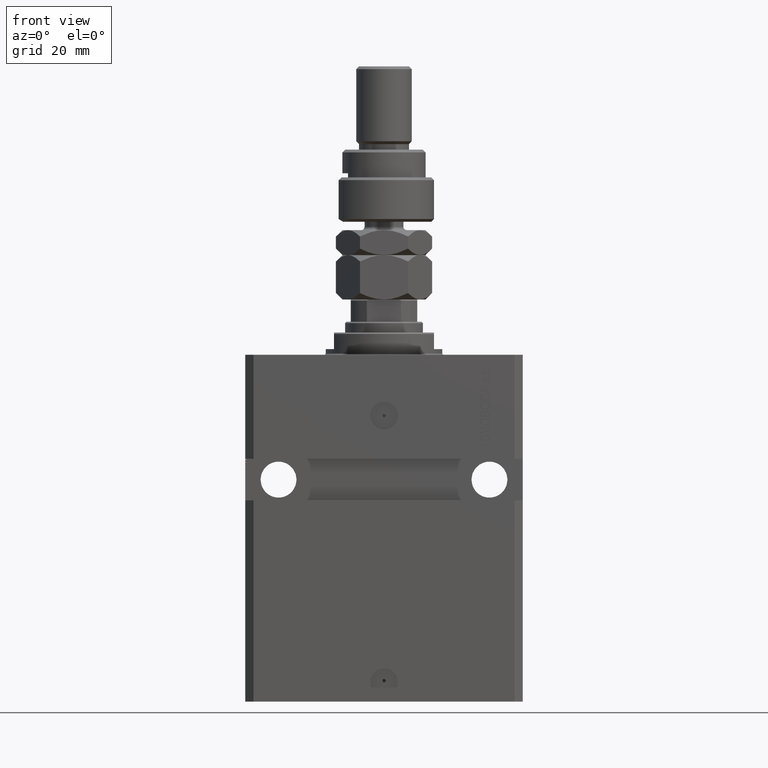
[diagram: clean part render]
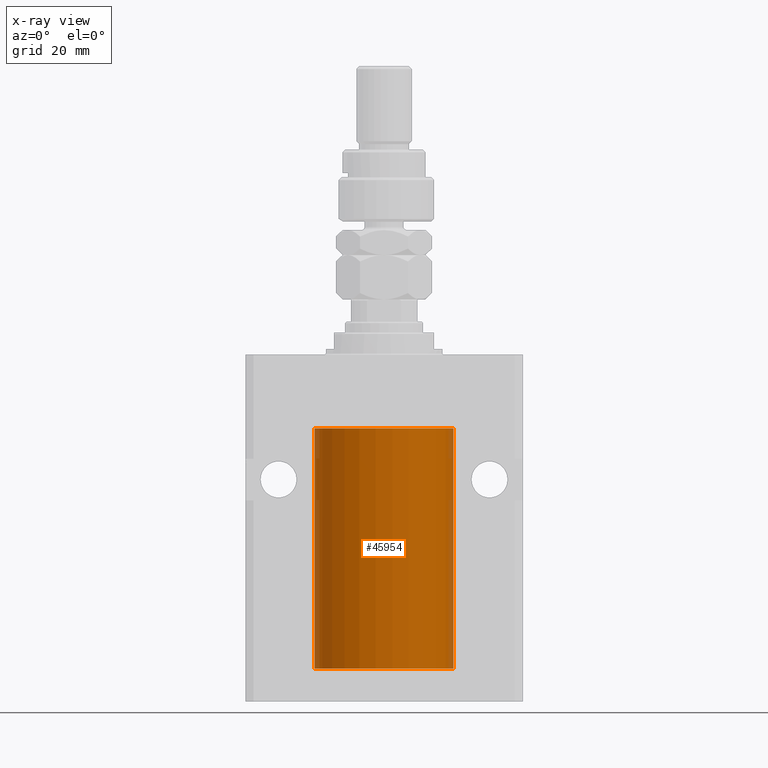
[diagram: x-ray — body ghosted, one internal face saturated and labeled with its STEP entity id]
A machine part, front view, then the same camera in x-ray: the body is ghosted and one INTERNAL B-rep face — a face not visible from any outside direction — is saturated and labeled: STEP entity #45954.
In plain terms, the highlighted cylindrical surface (partial cylindrical patch) has radius 25 mm, axis along (0, 0, 1).
Its self-contained STEP definition (entity closure, byte-faithful):
#1011 = EDGE_CURVE ( 'NONE', #47231, #46556, #41535, .T. ) ;
#1228 = DIRECTION ( 'NONE',  ( 0.000000000000000000, 0.000000000000000000, 1.000000000000000000 ) ) ;
#2929 = DIRECTION ( 'NONE',  ( -0.000000000000000000, -0.000000000000000000, 1.000000000000000000 ) ) ;
#3446 = LINE ( 'NONE', #29990, #8678 ) ;
#4051 = ORIENTED_EDGE ( 'NONE', *, *, #1011, .F. ) ;
#4135 = CARTESIAN_POINT ( 'NONE',  ( -25.00000000000000000, -2.540720905424995806E-14, -109.8750000000000000 ) ) ;
#6867 = EDGE_CURVE ( 'NONE', #38957, #34675, #27768, .T. ) ;
#7808 = CARTESIAN_POINT ( 'NONE',  ( 25.00000000000000000, 0.000000000000000000, -26.60000000000000142 ) ) ;
#8332 = AXIS2_PLACEMENT_3D ( 'NONE', #38445, #19274, #15455 ) ;
#8678 = VECTOR ( 'NONE', #2929, 1000.000000000000000 ) ;
#9184 = EDGE_CURVE ( 'NONE', #48681, #25495, #3446, .T. ) ;
#11297 = CIRCLE ( 'NONE', #24315, 25.00000000000000000 ) ;
#12301 = CARTESIAN_POINT ( 'NONE',  ( -25.00000000000000355, -0.1651503688830821270, -109.8750000000000142 ) ) ;
#13480 = DIRECTION ( 'NONE',  ( 1.000000000000000000, 0.000000000000000000, 0.000000000000000000 ) ) ;
#13776 = AXIS2_PLACEMENT_3D ( 'NONE', #18487, #29714, #14672 ) ;
#14069 = ORIENTED_EDGE ( 'NONE', *, *, #17215, .F. ) ;
#14169 = FACE_OUTER_BOUND ( 'NONE', #31977, .T. ) ;
#14672 = DIRECTION ( 'NONE',  ( 1.000000000000000000, 0.000000000000000000, 0.000000000000000000 ) ) ;
#15172 = EDGE_CURVE ( 'NONE', #34675, #48681, #19158, .T. ) ;
#15455 = DIRECTION ( 'NONE',  ( 1.000000000000000000, 0.000000000000000000, 0.000000000000000000 ) ) ;
#15653 = CARTESIAN_POINT ( 'NONE',  ( -25.00000000000008171, 3.517566575222595158E-13, -111.1250000000032827 ) ) ;
#15882 = CARTESIAN_POINT ( 'NONE',  ( -24.99999999999999645, -0.1631302912503610480, -111.1250000000001421 ) ) ;
#16125 = CARTESIAN_POINT ( 'NONE',  ( 25.00000000000000000, 0.000000000000000000, -113.0999999999999943 ) ) ;
#16322 = ORIENTED_EDGE ( 'NONE', *, *, #6867, .T. ) ;
#16384 = CARTESIAN_POINT ( 'NONE',  ( -24.99406145684571001, -0.5569515746258935085, -110.8270940848234858 ) ) ;
#17054 = CARTESIAN_POINT ( 'NONE',  ( -25.00000000000000000, 3.061616997868383043E-15, -113.0999999999999943 ) ) ;
#17215 = EDGE_CURVE ( 'NONE', #38957, #47231, #11297, .T. ) ;
#17791 = CARTESIAN_POINT ( 'NONE',  ( 25.00000000000000000, 0.000000000000000000, -113.0999999999999943 ) ) ;
#18487 = CARTESIAN_POINT ( 'NONE',  ( 0.000000000000000000, 0.000000000000000000, -113.0999999999999943 ) ) ;
#19158 = B_SPLINE_CURVE_WITH_KNOTS ( 'NONE', 3,
 ( #47778, #15882, #20456, #16384, #36044, #47285, #39119, #24013, #12301, #4135 ),
 .UNSPECIFIED., .F., .F.,
 ( 4, 2, 2, 2, 4 ),
 ( 0.001954111766881341111, 0.002442529193076332407, 0.002930946619271323703, 0.003419364045466314998, 0.003907781471661306294 ),
 .UNSPECIFIED. ) ;
#19274 = DIRECTION ( 'NONE',  ( 0.000000000000000000, 0.000000000000000000, 1.000000000000000000 ) ) ;
#20456 = CARTESIAN_POINT ( 'NONE',  ( -24.99813644420120795, -0.3263088753891773552, -111.0574119792819374 ) ) ;
#21472 = ORIENTED_EDGE ( 'NONE', *, *, #15172, .T. ) ;
#21620 = DIRECTION ( 'NONE',  ( -0.000000000000000000, -0.000000000000000000, 1.000000000000000000 ) ) ;
#23210 = CARTESIAN_POINT ( 'NONE',  ( -25.00000000000000000, 3.061616997868383043E-15, -113.0999999999999943 ) ) ;
#24013 = CARTESIAN_POINT ( 'NONE',  ( -24.99812796309119634, -0.3269516851027584048, -109.9429046887702128 ) ) ;
#24315 = AXIS2_PLACEMENT_3D ( 'NONE', #47964, #1228, #13480 ) ;
#24546 = CARTESIAN_POINT ( 'NONE',  ( -25.00000000000000000, 3.061616997868383043E-15, -26.60000000000000142 ) ) ;
#25495 = VERTEX_POINT ( 'NONE', #24546 ) ;
#26647 = CYLINDRICAL_SURFACE ( 'NONE', #13776, 25.00000000000000000 ) ;
#27753 = ORIENTED_EDGE ( 'NONE', *, *, #28766, .T. ) ;
#27768 = LINE ( 'NONE', #17054, #49341 ) ;
#28766 = EDGE_CURVE ( 'NONE', #25495, #46556, #48286, .T. ) ;
#29265 = CARTESIAN_POINT ( 'NONE',  ( -25.00000000000000000, -2.540720905424995806E-14, -109.8750000000000000 ) ) ;
#29714 = DIRECTION ( 'NONE',  ( -0.000000000000000000, -0.000000000000000000, 1.000000000000000000 ) ) ;
#29990 = CARTESIAN_POINT ( 'NONE',  ( -25.00000000000000000, 3.061616997868383043E-15, -113.0999999999999943 ) ) ;
#31977 = EDGE_LOOP ( 'NONE', ( #14069, #16322, #21472, #40554, #27753, #4051 ) ) ;
#34675 = VERTEX_POINT ( 'NONE', #15653 ) ;
#36044 = CARTESIAN_POINT ( 'NONE',  ( -24.99218973898648599, -0.6248616403601209290, -110.6653718335254695 ) ) ;
#38445 = CARTESIAN_POINT ( 'NONE',  ( 0.000000000000000000, 0.000000000000000000, -26.60000000000000142 ) ) ;
#38957 = VERTEX_POINT ( 'NONE', #23210 ) ;
#39119 = CARTESIAN_POINT ( 'NONE',  ( -24.99404783808660824, -0.5575587241817697715, -110.1738392125429868 ) ) ;
#39800 = DIRECTION ( 'NONE',  ( -0.000000000000000000, -0.000000000000000000, 1.000000000000000000 ) ) ;
#40554 = ORIENTED_EDGE ( 'NONE', *, *, #9184, .T. ) ;
#41535 = LINE ( 'NONE', #17791, #45576 ) ;
#45576 = VECTOR ( 'NONE', #21620, 1000.000000000000000 ) ;
#45954 = ADVANCED_FACE ( 'NONE', ( #14169 ), #26647, .F. ) ;
#46556 = VERTEX_POINT ( 'NONE', #7808 ) ;
#47231 = VERTEX_POINT ( 'NONE', #16125 ) ;
#47285 = CARTESIAN_POINT ( 'NONE',  ( -24.99218282981962247, -0.6251379207535883165, -110.3356756471091558 ) ) ;
#47778 = CARTESIAN_POINT ( 'NONE',  ( -25.00000000000008171, 3.517566575222595158E-13, -111.1250000000032827 ) ) ;
#47964 = CARTESIAN_POINT ( 'NONE',  ( 0.000000000000000000, 0.000000000000000000, -113.0999999999999943 ) ) ;
#48286 = CIRCLE ( 'NONE', #8332, 25.00000000000000000 ) ;
#48681 = VERTEX_POINT ( 'NONE', #29265 ) ;
#49341 = VECTOR ( 'NONE', #39800, 1000.000000000000000 ) ;